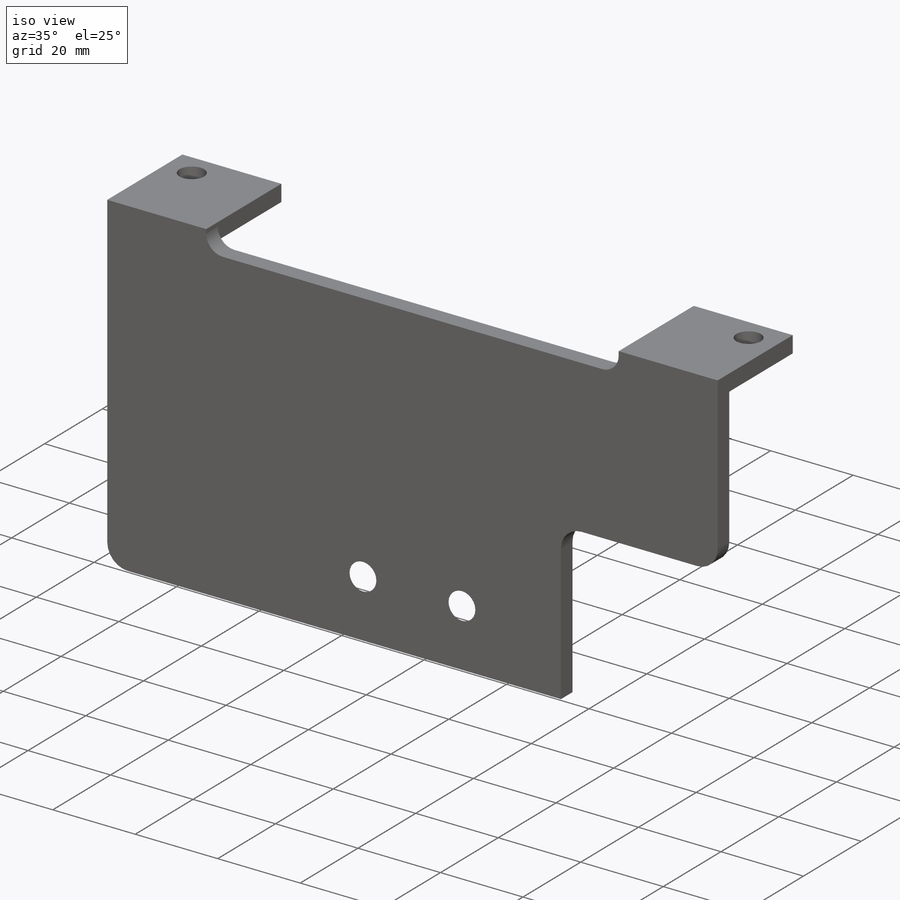
[diagram: iso view]
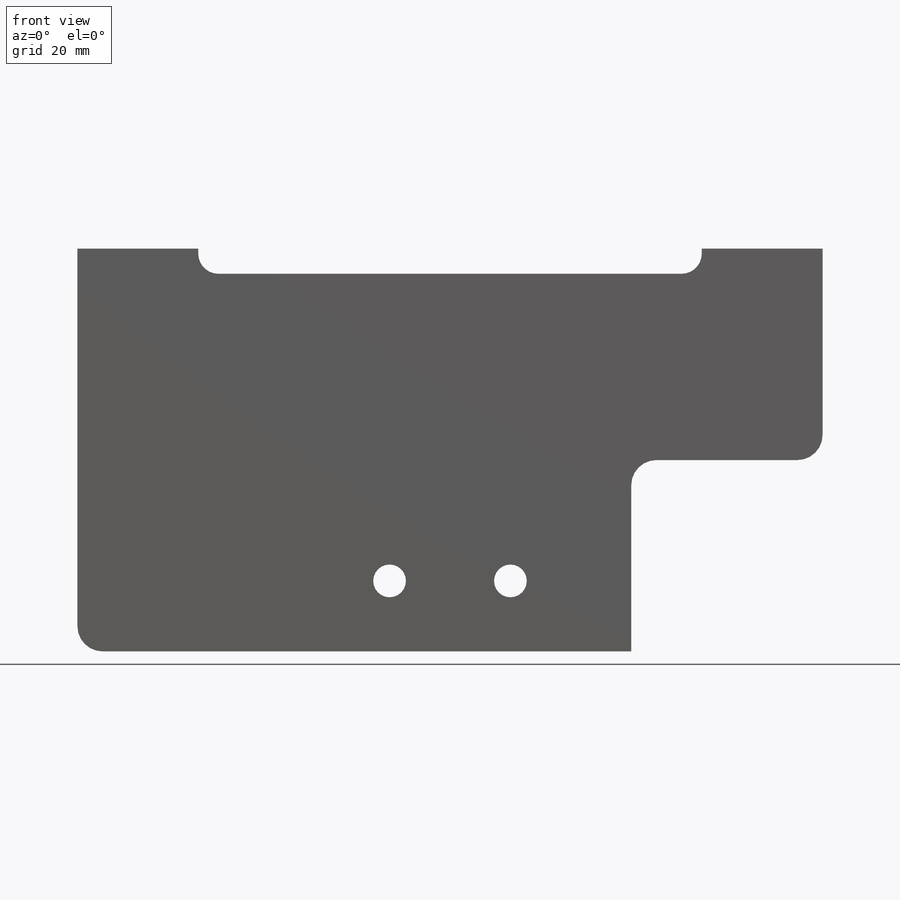
[diagram: front view]
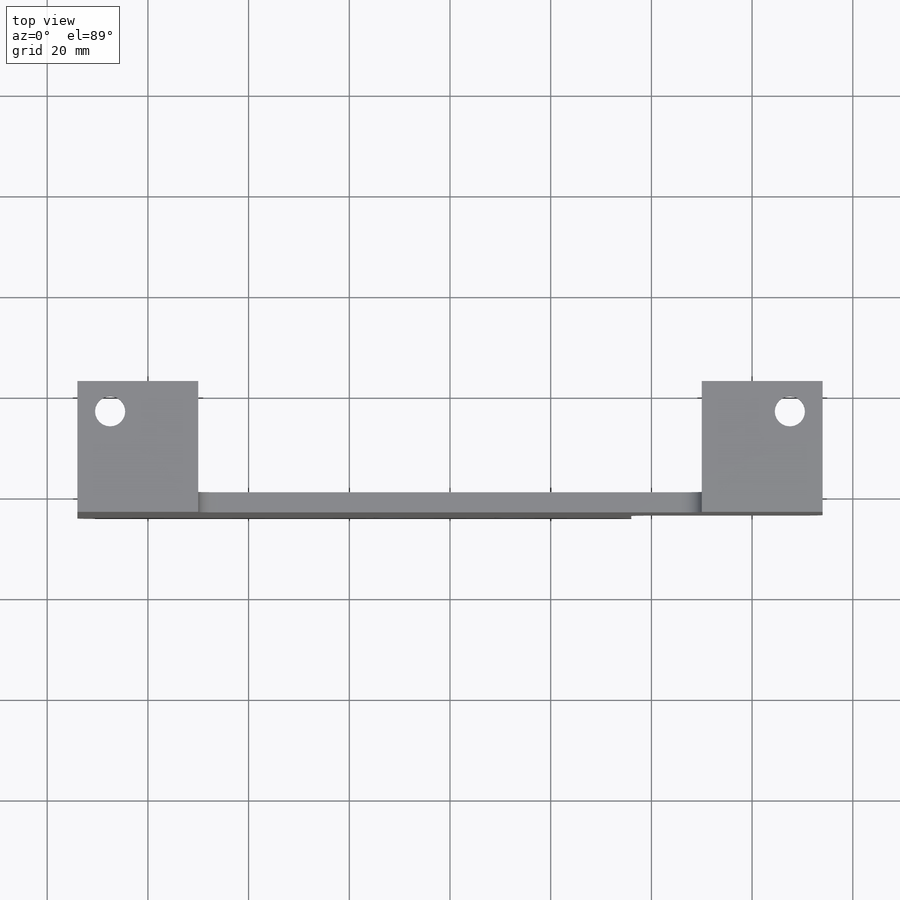
[diagram: top view]
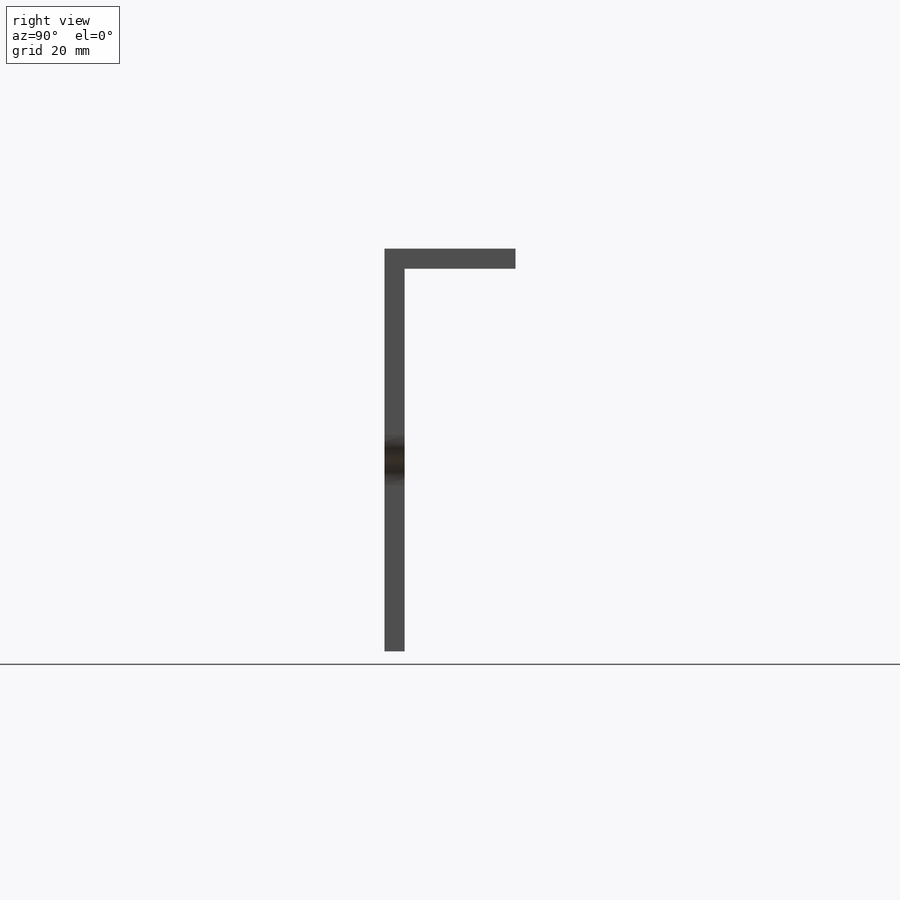
[diagram: right view]
SOLIDWORKS PART (.sldprt)
format: sldprt  version: not decoded by parser v0  size: 236,544 bytes
history: native  units: mm
features: sketch x7, cut_extrude x5, plane x3, extrude x2, fillet x2, material x1, chamfer x1 (+8 scaffold rows collapsed)
feature tree (29):
  scaffold x8  (default folders/planes/origin — collapsed)
  material  "Matériau <non spécifié>"
  plane  "Plan de face"
  plane  "Plan de dessus"
  plane  "Plan de droite"
  sketch  "Esquisse1"  dims[D1=80.0mm D2=148.0mm]
  extrude  "Boss.-Extru.1"  Depth=4mm
  sketch  "Esquisse2"  dims[D1=4.0mm]
  extrude  "Boss.-Extru.2"  Depth=22mm
  sketch  "Esquisse3"  dims[D3=6.0mm D1=6.0mm D2=135.0mm]
  cut_extrude  "Enlèv. mat.-Extru.1"  Depth=22mm
  sketch  "Esquisse4"  dims[D3=6.5mm D1=14.0mm D2=24.0mm]
  cut_extrude  "Enlèv. mat.-Extru.2"  Depth=22mm
  chamfer  "Chanfrein1"  Distance=4mm Angle=45deg
  sketch  "Esquisse5"  dims[D1=38.0mm D2=38.0mm]
  cut_extrude  "Enlèv. mat.-Extru.3"  Depth=22mm
  fillet  "Congé1"  Radius=5mm
  sketch  "Esquisse6"  dims[D1=100.0mm]
  cut_extrude  "Enlèv. mat.-Extru.4"  Depth=10mm
  sketch  "Esquisse8"  dims[D2=4.0mm D1=5.0mm]
  cut_extrude  "Enlèv. mat.-Extru.5"  Depth=10mm
  fillet  "Congé2"  Radius=5mm
decode coverage: 17 of 17 modeling features carry decoded parameters
note: suppression state not decoded; provenance and decode notes live in map.json
